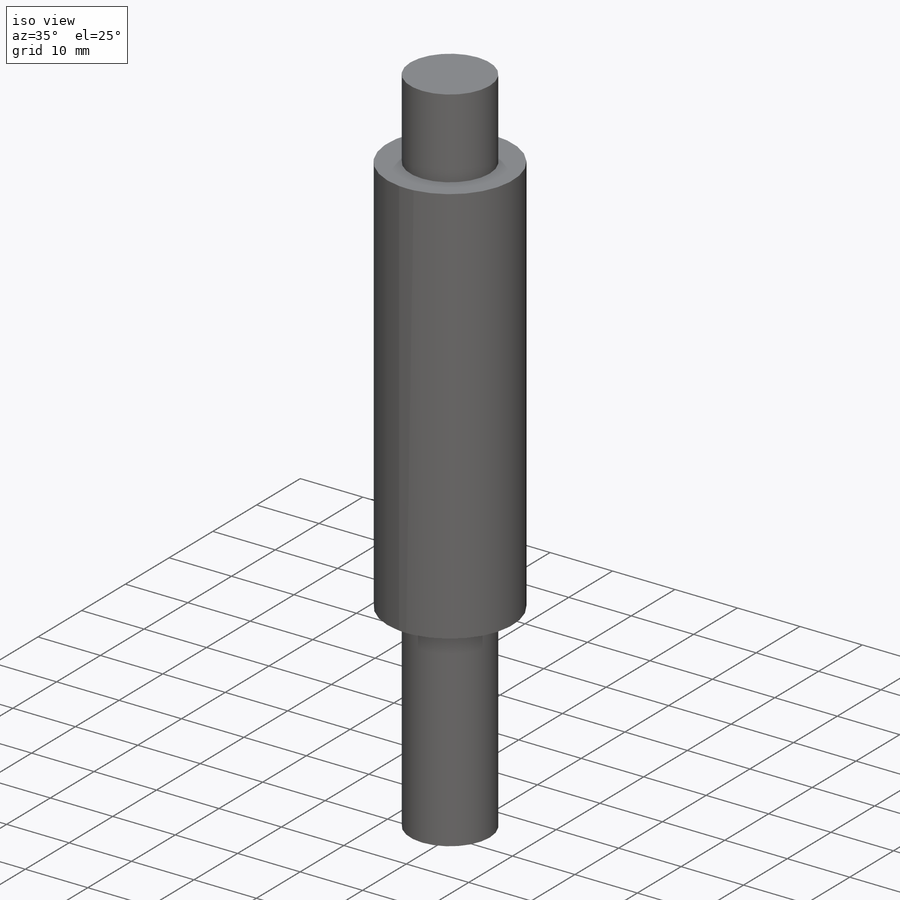
[diagram: iso view]
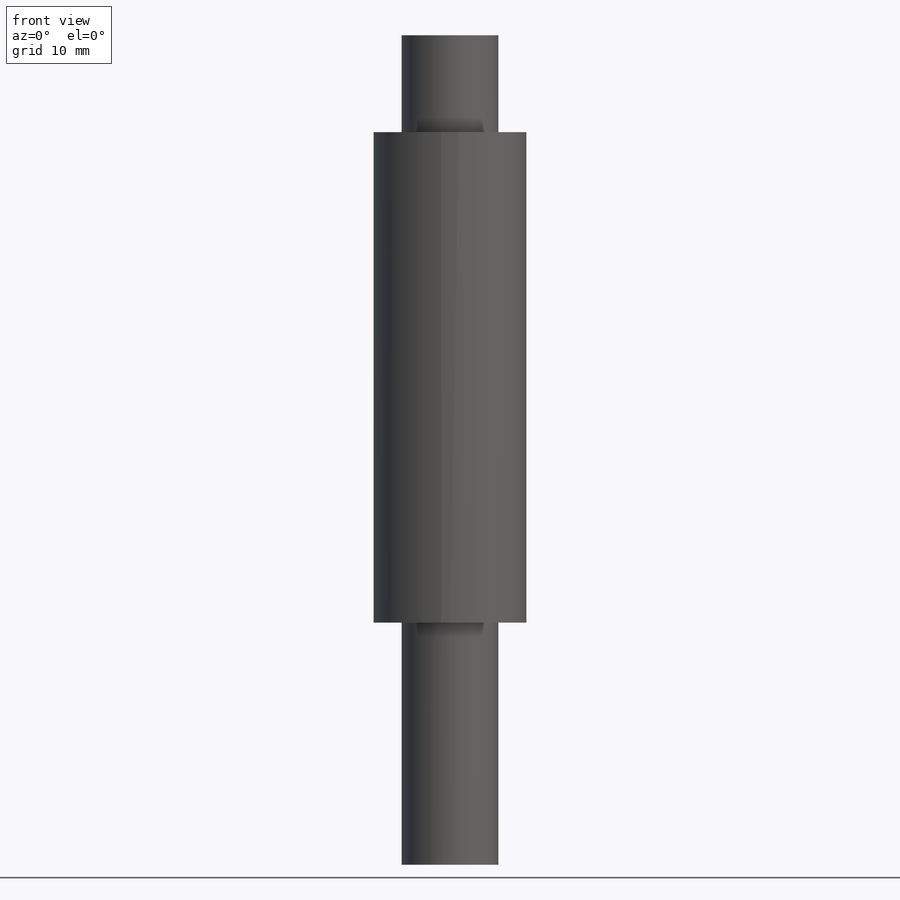
[diagram: front view]
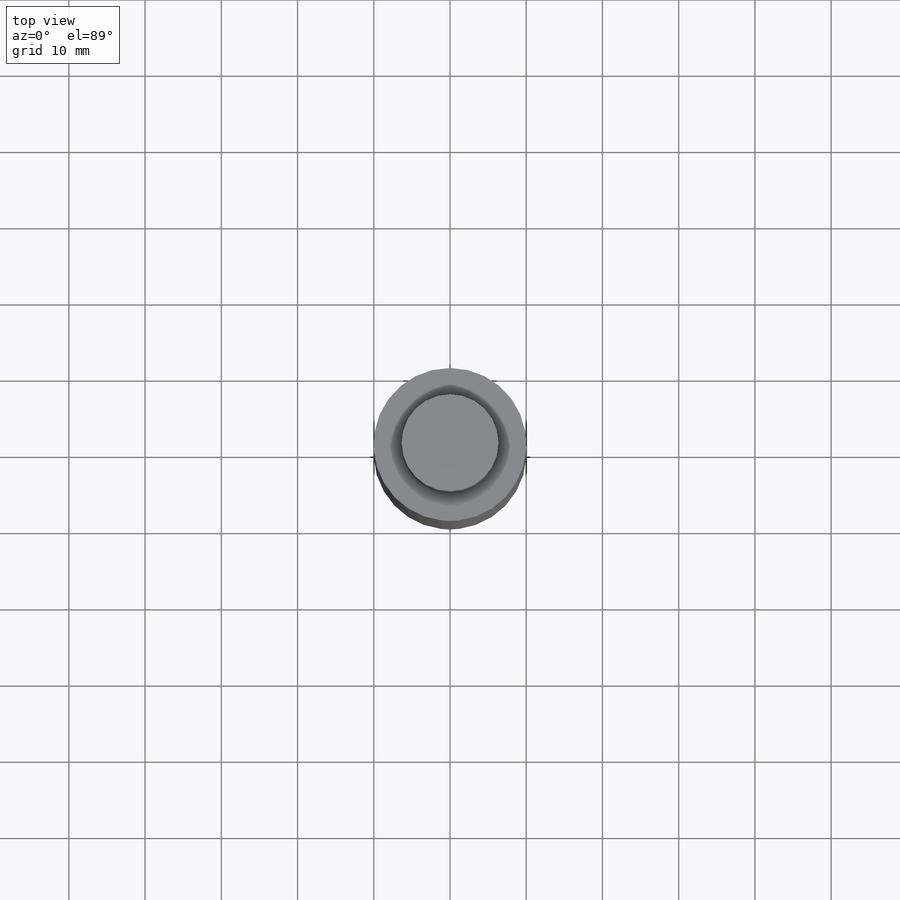
[diagram: top view]
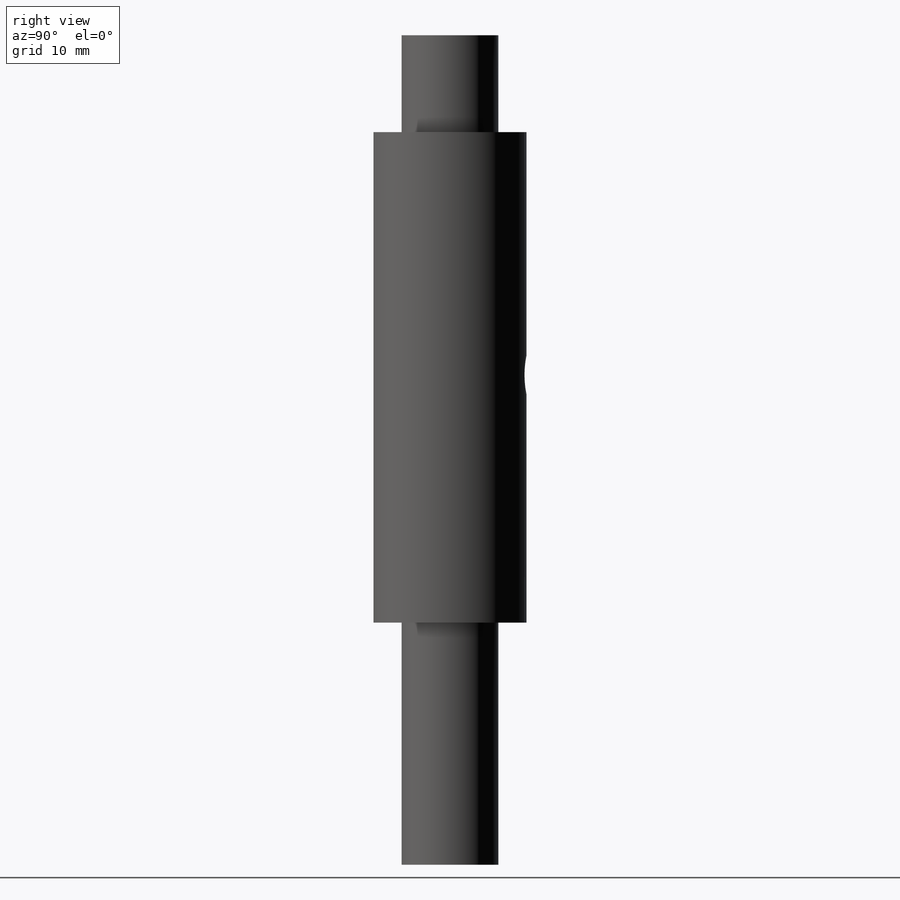
[diagram: right view]
SOLIDWORKS PART (.sldprt)
format: sldprt  version: not decoded by parser v0  size: 162,304 bytes
history: native  units: mm
features: sketch x5, extrude x3, material x1, hole x1 (+11 scaffold rows collapsed)
feature tree (21):
  scaffold x11  (default folders/planes/origin — collapsed)
  material  "Material <not specified>"
  sketch  "Sketch1"  dims[D1=12.7mm]
  extrude  "BushingSprocketSpace"  Depth=31.75mm
  sketch  "Sketch2"  dims[D1=20.066mm]
  extrude  "Boss-Extrude2"  Depth=64.3509mm
  sketch  "Sketch3"  dims[D1=12.7mm]
  extrude  "Boss-Extrude3"  Depth=12.7mm
  hole  "#10-24 Tapped Hole2"  Diameter=3.7973mm Depth=10.16mm
  sketch  "3DSketch10"  dims[D1=~31.84906mm]
  sketch  "Sketch11"  dims[hole-wizard template sketch: 40 standard entries collapsed; hole parameters kept: c13.Tap Drill Depth=10.16mm c13.Near C'Sink Dia.=5.0673mm c13.D4=~33.297463mm c13.Near C'Sink Angle=90.0deg c14.D5=~14.816244mm c14.Drill Angle=118.0deg]
decode coverage: 9 of 9 modeling features carry decoded parameters
note: ~ marks probable driven/reference dimensions
note: suppression state not decoded; provenance and decode notes live in map.json
